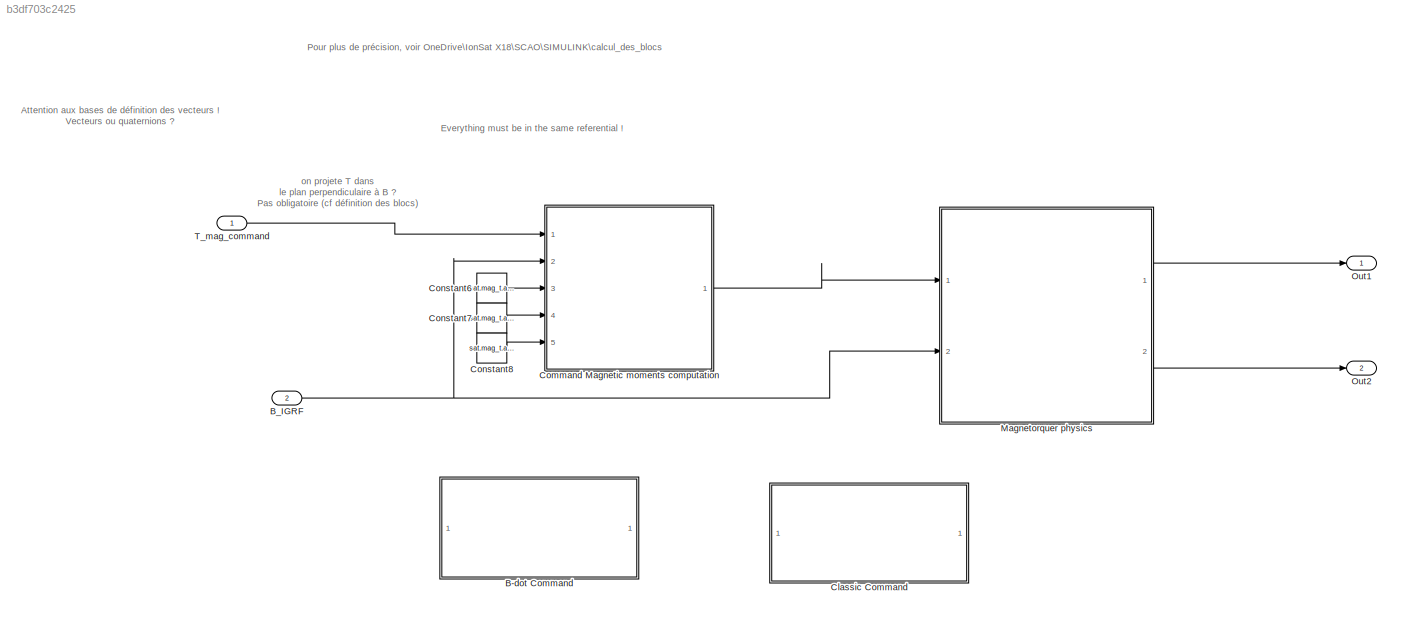
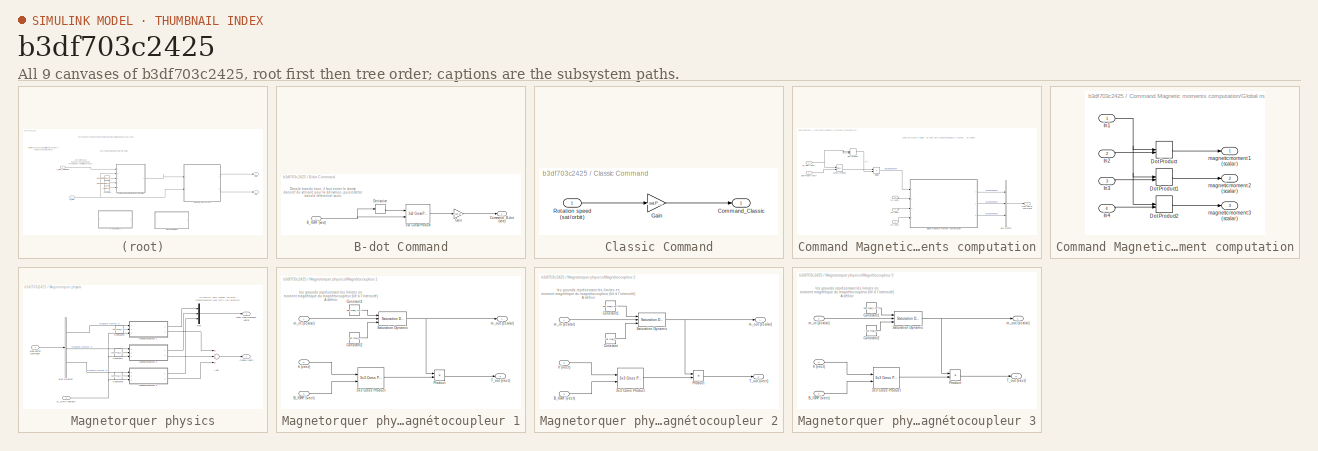
[diagram: thumbnail index - all 9 canvases of the model, root first then tree order]
MODEL slx_b3df703c2425
KIND model
CONFIG AbsTol = auto
CONFIG EnableMultiTasking = off
CONFIG FixedStep = auto
CONFIG MaxStep = auto
CONFIG MinStep = auto
CONFIG RelTol = 1e-3
CONFIG SampleTimeConstraint = Unconstrained
CONFIG Solver = ode5
CONFIG SolverName = ode5
CONFIG StartTime = 0.0
CONFIG StopTime = 10.0
BLOCK [SubSystem] B-dot Command
  Ports = [1, 1]
  RequestExecContextInheritance = off
BLOCK [Reference] B-dot Command/3x3 Cross Product  REF=sharedutil/3x3 Cross Product
  Ports = [2, 1]
  SourceBlock = sharedutil/3x3 Cross Product
  SourceProductBaseCode = AE
  SourceProductName = Aerospace Blockset
  SourceType = CrossProduct
BLOCK [Inport] B-dot Command/B_IGRF (vect)
  IconDisplay = Port number
BLOCK [Outport] B-dot Command/Command_B-dot (vect)
  IconDisplay = Port number
  VectorParamsAs1DForOutWhenUnconnected = off
BLOCK [Derivative] B-dot Command/Derivative
BLOCK [Gain] B-dot Command/Gain
  Gain = - sat.PID.k_mag_bdot
  OutDataTypeStr = Inherit: Inherit via internal rule
  ParamDataTypeStr = Inherit: Inherit via internal rule
  SaturateOnIntegerOverflow = off
BLOCK [Inport] B_IGRF
  IconDisplay = Port number
  Port = 2
BLOCK [SubSystem] Classic Command
  Ports = [1, 1]
  RequestExecContextInheritance = off
BLOCK [Outport] Classic Command/Command_Classic
  IconDisplay = Port number
  VectorParamsAs1DForOutWhenUnconnected = off
BLOCK [Gain] Classic Command/Gain
  Gain = - sat.PID.k_mag_classic
  OutDataTypeStr = Inherit: Inherit via internal rule
  ParamDataTypeStr = Inherit: Inherit via internal rule
  SaturateOnIntegerOverflow = off
BLOCK [Inport] Classic Command/Rotation speed (sat//orbit)
  IconDisplay = Port number
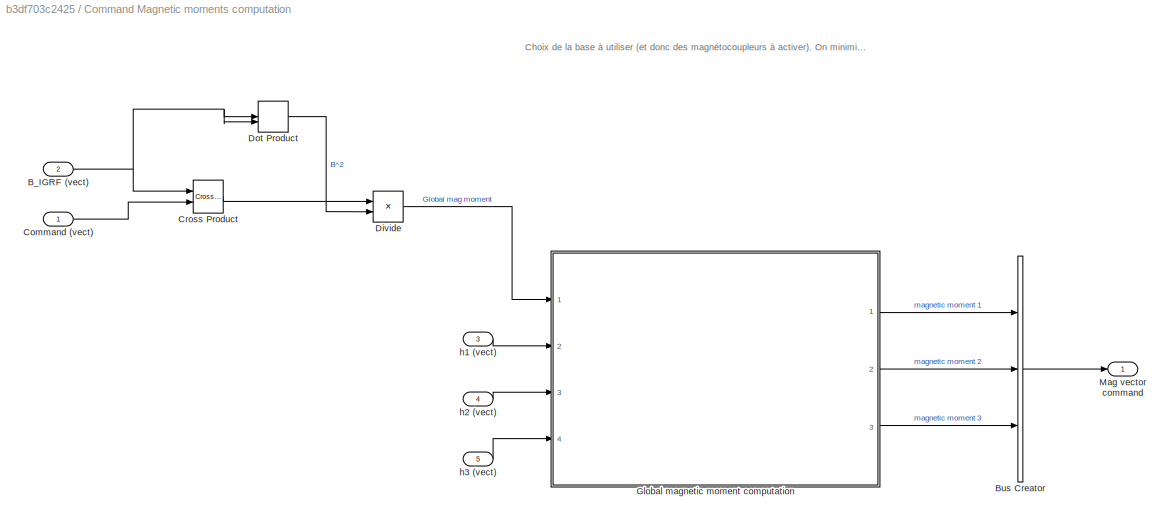
BLOCK [SubSystem] Command Magnetic moments computation
  Ports = [5, 1]
  RequestExecContextInheritance = off
BLOCK [Inport] Command Magnetic moments computation/B_IGRF (vect)
  IconDisplay = Port number
  Port = 2
BLOCK [BusCreator] Command Magnetic moments computation/Bus Creator
  DisplayOption = bar
  InheritFromInputs = on
  Inputs = 3
  Ports = [3, 1]
BLOCK [Inport] Command Magnetic moments computation/Command (vect)
  IconDisplay = Port number
BLOCK [Reference] Command Magnetic moments computation/Cross Product  REF=vrlib/Utilities/Cross Product
  Ports = [2, 1]
  SourceBlock = vrlib/Utilities/Cross Product
  SourceProductBaseCode = SL
  SourceProductName = Simulink
  SourceType = Cross Product
BLOCK [Product] Command Magnetic moments computation/Divide
  InputSameDT = off
  Inputs = */
  OutDataTypeStr = Inherit: Inherit via internal rule
  Ports = [2, 1]
  RndMeth = Floor
  SaturateOnIntegerOverflow = off
BLOCK [DotProduct] Command Magnetic moments computation/Dot Product
  OutDataTypeStr = Inherit: Inherit via internal rule
BLOCK [SubSystem] Command Magnetic moments computation/Global magnetic moment computation
  Ports = [4, 3]
  RequestExecContextInheritance = off
BLOCK [DotProduct] Command Magnetic moments computation/Global magnetic moment computation/Dot Product
  OutDataTypeStr = Inherit: Inherit via internal rule
BLOCK [DotProduct] Command Magnetic moments computation/Global magnetic moment computation/Dot Product1
  OutDataTypeStr = Inherit: Inherit via internal rule
BLOCK [DotProduct] Command Magnetic moments computation/Global magnetic moment computation/Dot Product2
  OutDataTypeStr = Inherit: Inherit via internal rule
BLOCK [Inport] Command Magnetic moments computation/Global magnetic moment computation/In1
  IconDisplay = Port number
BLOCK [Inport] Command Magnetic moments computation/Global magnetic moment computation/In2
  IconDisplay = Port number
  Port = 2
BLOCK [Inport] Command Magnetic moments computation/Global magnetic moment computation/In3
  IconDisplay = Port number
  Port = 3
BLOCK [Inport] Command Magnetic moments computation/Global magnetic moment computation/In4
  IconDisplay = Port number
  Port = 4
BLOCK [Outport] Command Magnetic moments computation/Global magnetic moment computation/magnetic moment 1 (scalar)
  IconDisplay = Port number
BLOCK [Outport] Command Magnetic moments computation/Global magnetic moment computation/magnetic moment 2 (scalar)
  IconDisplay = Port number
  Port = 2
BLOCK [Outport] Command Magnetic moments computation/Global magnetic moment computation/magnetic moment 3 (scalar)
  IconDisplay = Port number
  Port = 3
BLOCK [Outport] Command Magnetic moments computation/Mag vector command
  IconDisplay = Port number
  VectorParamsAs1DForOutWhenUnconnected = off
BLOCK [Inport] Command Magnetic moments computation/h1 (vect)
  IconDisplay = Port number
  Port = 3
BLOCK [Inport] Command Magnetic moments computation/h2 (vect)
  IconDisplay = Port number
  Port = 4
BLOCK [Inport] Command Magnetic moments computation/h3 (vect)
  IconDisplay = Port number
  Port = 5
BLOCK [Constant] Constant6
  Value = sat.mag_t.axe1
BLOCK [Constant] Constant7
  Value = sat.mag_t.axe2
BLOCK [Constant] Constant8
  Value = sat.mag_t.axe3
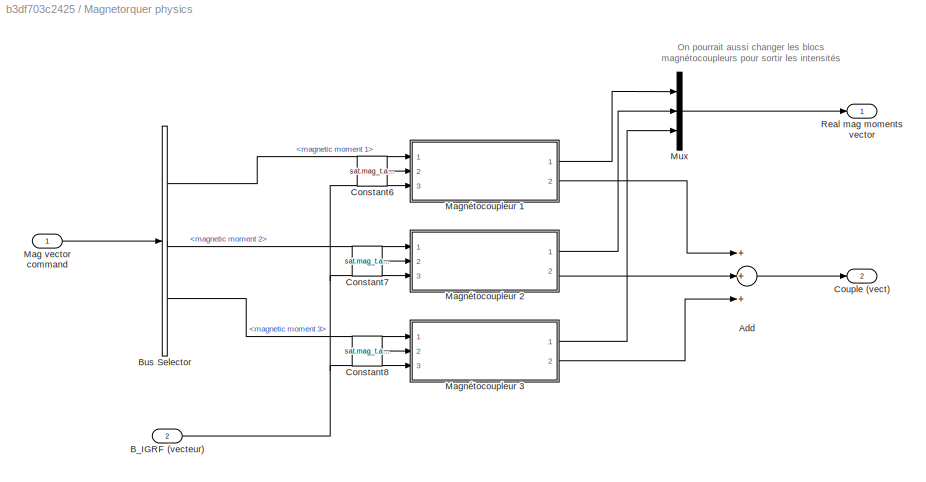
BLOCK [SubSystem] Magnetorquer physics
  Ports = [2, 2]
  RequestExecContextInheritance = off
BLOCK [Sum] Magnetorquer physics/Add
  InputSameDT = off
  Inputs = +++
  OutDataTypeStr = Inherit: Inherit via internal rule
  Ports = [3, 1]
  SaturateOnIntegerOverflow = off
BLOCK [Inport] Magnetorquer physics/B_IGRF (vecteur)
  IconDisplay = Port number
  Port = 2
BLOCK [BusSelector] Magnetorquer physics/Bus Selector
  OutputAsBus = off
  OutputSignals = magnetic moment 1,magnetic moment 2,magnetic moment 3
  Ports = [1, 3]
BLOCK [Constant] Magnetorquer physics/Constant6
  Value = sat.mag_t.axe1
BLOCK [Constant] Magnetorquer physics/Constant7
  Value = sat.mag_t.axe2
BLOCK [Constant] Magnetorquer physics/Constant8
  Value = sat.mag_t.axe3
BLOCK [Outport] Magnetorquer physics/Couple (vect)
  IconDisplay = Port number
  Port = 2
  VectorParamsAs1DForOutWhenUnconnected = off
BLOCK [Inport] Magnetorquer physics/Mag vector command
  IconDisplay = Port number
BLOCK [SubSystem] Magnetorquer physics/Magnétocoupleur 1
  Ports = [3, 2]
  RequestExecContextInheritance = off
BLOCK [Reference] Magnetorquer physics/Magnétocoupleur 1/3x3 Cross Product  REF=sharedutil/3x3 Cross Product
  Ports = [2, 1]
  SourceBlock = sharedutil/3x3 Cross Product
  SourceProductBaseCode = AE
  SourceProductName = Aerospace Blockset
  SourceType = CrossProduct
BLOCK [Inport] Magnetorquer physics/Magnétocoupleur 1/B_IGRF (vect)
  IconDisplay = Port number
  Port = 3
BLOCK [Constant] Magnetorquer physics/Magnétocoupleur 1/Constant1
  Value = sat.mag_t.max_mm1
BLOCK [Constant] Magnetorquer physics/Magnétocoupleur 1/Constant2
  Value = - sat.mag_t.max_mm1
BLOCK [Product] Magnetorquer physics/Magnétocoupleur 1/Product
  InputSameDT = off
  OutDataTypeStr = Inherit: Inherit via internal rule
  Ports = [2, 1]
  RndMeth = Floor
  SaturateOnIntegerOverflow = off
BLOCK [Reference] Magnetorquer physics/Magnétocoupleur 1/Saturation Dynamic  REF=simulink/Discontinuities/Saturation
Dynamic
  Ports = [3, 1]
  SourceBlock = simulink/Discontinuities/Saturation\nDynamic
  SourceProductBaseCode = SL
  SourceProductName = Simulink
  SourceType = Saturation Dynamic
BLOCK [Outport] Magnetorquer physics/Magnétocoupleur 1/T_out (vect)
  IconDisplay = Port number
  Port = 2
  VectorParamsAs1DForOutWhenUnconnected = off
BLOCK [Inport] Magnetorquer physics/Magnétocoupleur 1/h (vect)
  IconDisplay = Port number
  Port = 2
BLOCK [Inport] Magnetorquer physics/Magnétocoupleur 1/m_in (scalar)
  IconDisplay = Port number
BLOCK [Outport] Magnetorquer physics/Magnétocoupleur 1/m_out (scalar)
  IconDisplay = Port number
  VectorParamsAs1DForOutWhenUnconnected = off
BLOCK [SubSystem] Magnetorquer physics/Magnétocoupleur 2
  Ports = [3, 2]
  RequestExecContextInheritance = off
BLOCK [Reference] Magnetorquer physics/Magnétocoupleur 2/3x3 Cross Product  REF=sharedutil/3x3 Cross Product
  Ports = [2, 1]
  SourceBlock = sharedutil/3x3 Cross Product
  SourceProductBaseCode = AE
  SourceProductName = Aerospace Blockset
  SourceType = CrossProduct
BLOCK [Inport] Magnetorquer physics/Magnétocoupleur 2/B_IGRF (vect)
  IconDisplay = Port number
  Port = 3
BLOCK [Constant] Magnetorquer physics/Magnétocoupleur 2/Constant
  Value = - sat.mag_t.max_mm2
BLOCK [Constant] Magnetorquer physics/Magnétocoupleur 2/Constant1
  Value = sat.mag_t.max_mm2
BLOCK [Product] Magnetorquer physics/Magnétocoupleur 2/Product
  InputSameDT = off
  OutDataTypeStr = Inherit: Inherit via internal rule
  Ports = [2, 1]
  RndMeth = Floor
  SaturateOnIntegerOverflow = off
BLOCK [Reference] Magnetorquer physics/Magnétocoupleur 2/Saturation Dynamic  REF=simulink/Discontinuities/Saturation
Dynamic
  Ports = [3, 1]
  SourceBlock = simulink/Discontinuities/Saturation\nDynamic
  SourceProductBaseCode = SL
  SourceProductName = Simulink
  SourceType = Saturation Dynamic
BLOCK [Outport] Magnetorquer physics/Magnétocoupleur 2/T_out (vect)
  IconDisplay = Port number
  Port = 2
  VectorParamsAs1DForOutWhenUnconnected = off
BLOCK [Inport] Magnetorquer physics/Magnétocoupleur 2/h (vect)
  IconDisplay = Port number
  Port = 2
BLOCK [Inport] Magnetorquer physics/Magnétocoupleur 2/m_in (scalar)
  IconDisplay = Port number
BLOCK [Outport] Magnetorquer physics/Magnétocoupleur 2/m_out (scalar)
  IconDisplay = Port number
  VectorParamsAs1DForOutWhenUnconnected = off
BLOCK [SubSystem] Magnetorquer physics/Magnétocoupleur 3
  Ports = [3, 2]
  RequestExecContextInheritance = off
BLOCK [Reference] Magnetorquer physics/Magnétocoupleur 3/3x3 Cross Product  REF=sharedutil/3x3 Cross Product
  Ports = [2, 1]
  SourceBlock = sharedutil/3x3 Cross Product
  SourceProductBaseCode = AE
  SourceProductName = Aerospace Blockset
  SourceType = CrossProduct
BLOCK [Inport] Magnetorquer physics/Magnétocoupleur 3/B_IGRF (vect)
  IconDisplay = Port number
  Port = 3
BLOCK [Constant] Magnetorquer physics/Magnétocoupleur 3/Constant1
  Value = sat.mag_t.max_mm3
BLOCK [Constant] Magnetorquer physics/Magnétocoupleur 3/Constant2
  Value = - sat.mag_t.max_mm3
BLOCK [Product] Magnetorquer physics/Magnétocoupleur 3/Product
  InputSameDT = off
  OutDataTypeStr = Inherit: Inherit via internal rule
  Ports = [2, 1]
  RndMeth = Floor
  SaturateOnIntegerOverflow = off
BLOCK [Reference] Magnetorquer physics/Magnétocoupleur 3/Saturation Dynamic  REF=simulink/Discontinuities/Saturation
Dynamic
  Ports = [3, 1]
  SourceBlock = simulink/Discontinuities/Saturation\nDynamic
  SourceProductBaseCode = SL
  SourceProductName = Simulink
  SourceType = Saturation Dynamic
BLOCK [Outport] Magnetorquer physics/Magnétocoupleur 3/T_out (vect)
  IconDisplay = Port number
  Port = 2
  VectorParamsAs1DForOutWhenUnconnected = off
BLOCK [Inport] Magnetorquer physics/Magnétocoupleur 3/h (vect)
  IconDisplay = Port number
  Port = 2
BLOCK [Inport] Magnetorquer physics/Magnétocoupleur 3/m_in (scalar)
  IconDisplay = Port number
BLOCK [Outport] Magnetorquer physics/Magnétocoupleur 3/m_out (scalar)
  IconDisplay = Port number
  VectorParamsAs1DForOutWhenUnconnected = off
BLOCK [Mux] Magnetorquer physics/Mux
  DisplayOption = bar
  Inputs = 3
  Ports = [3, 1]
BLOCK [Outport] Magnetorquer physics/Real mag moments vector
  IconDisplay = Port number
  VectorParamsAs1DForOutWhenUnconnected = off
BLOCK [Outport] Out1
  IconDisplay = Port number
BLOCK [Outport] Out2
  IconDisplay = Port number
  Port = 2
BLOCK [Inport] T_mag_command
  IconDisplay = Port number
ANNOTATION (root): Attention aux bases de définition des vecteurs ! Vecteurs ou quaternions ?
ANNOTATION (root): Everything must be in the same referential !
ANNOTATION (root): Pour plus de précision, voir OneDrive\IonSat X18\SCAO\SIMULINK\calcul_des_blocs
ANNOTATION (root): on projete T dans le plan perpendiculaire à B ? Pas obligatoire (cf définition des blocs)
ANNOTATION B-dot Command: Dans le bras du haut, il faut entrer le champ dans ref du vehicule pour la dérivation, puis remettre dans le référentiel voulu
ANNOTATION Command Magnetic moments computation: Choix de la base à utiliser (et donc des magnétocoupleurs à activer). On minimise en gros l'intensité globale.
ANNOTATION Magnetorquer physics: On pourrait aussi changer les blocs magnétocoupleurs pour sortir les intensités
ANNOTATION Magnetorquer physics/Magnétocoupleur 1: les grounds représentant les limites en moment magnétique du magnétocoupleur (lié à l'intensité) A définir
ANNOTATION Magnetorquer physics/Magnétocoupleur 2: les grounds représentant les limites en moment magnétique du magnétocoupleur (lié à l'intensité) A définir
ANNOTATION Magnetorquer physics/Magnétocoupleur 3: les grounds représentant les limites en moment magnétique du magnétocoupleur (lié à l'intensité) A définir
LINE B-dot Command/3x3 Cross Product:1 -> B-dot Command/Gain:1
NET B-dot Command/B_IGRF (vect):1 -> B-dot Command/3x3 Cross Product:2, B-dot Command/Derivative:1
LINE B-dot Command/Derivative:1 -> B-dot Command/3x3 Cross Product:1
LINE B-dot Command/Gain:1 -> B-dot Command/Command_B-dot (vect):1
NET B_IGRF:1 -> Command Magnetic moments computation:2, Magnetorquer physics:2
LINE Classic Command/Gain:1 -> Classic Command/Command_Classic:1
LINE Classic Command/Rotation speed (sat//orbit):1 -> Classic Command/Gain:1
NET Command Magnetic moments computation/B_IGRF (vect):1 -> Command Magnetic moments computation/Cross Product:1, Command Magnetic moments computation/Dot Product:1, Command Magnetic moments computation/Dot Product:2
LINE Command Magnetic moments computation/Bus Creator:1 -> Command Magnetic moments computation/Mag vector command:1
LINE Command Magnetic moments computation/Command (vect):1 -> Command Magnetic moments computation/Cross Product:2
LINE Command Magnetic moments computation/Cross Product:1 -> Command Magnetic moments computation/Divide:1
LINE Command Magnetic moments computation/Divide:1 -> Command Magnetic moments computation/Global magnetic moment computation:1
LINE Command Magnetic moments computation/Dot Product:1 -> Command Magnetic moments computation/Divide:2
LINE Command Magnetic moments computation/Global magnetic moment computation/Dot Product1:1 -> Command Magnetic moments computation/Global magnetic moment computation/magnetic moment 2 (scalar):1
LINE Command Magnetic moments computation/Global magnetic moment computation/Dot Product2:1 -> Command Magnetic moments computation/Global magnetic moment computation/magnetic moment 3 (scalar):1
LINE Command Magnetic moments computation/Global magnetic moment computation/Dot Product:1 -> Command Magnetic moments computation/Global magnetic moment computation/magnetic moment 1 (scalar):1
NET Command Magnetic moments computation/Global magnetic moment computation/In1:1 -> Command Magnetic moments computation/Global magnetic moment computation/Dot Product1:1, Command Magnetic moments computation/Global magnetic moment computation/Dot Product2:1, Command Magnetic moments computation/Global magnetic moment computation/Dot Product:1
LINE Command Magnetic moments computation/Global magnetic moment computation/In2:1 -> Command Magnetic moments computation/Global magnetic moment computation/Dot Product:2
LINE Command Magnetic moments computation/Global magnetic moment computation/In3:1 -> Command Magnetic moments computation/Global magnetic moment computation/Dot Product1:2
LINE Command Magnetic moments computation/Global magnetic moment computation/In4:1 -> Command Magnetic moments computation/Global magnetic moment computation/Dot Product2:2
LINE Command Magnetic moments computation/Global magnetic moment computation:1 -> Command Magnetic moments computation/Bus Creator:1
LINE Command Magnetic moments computation/Global magnetic moment computation:2 -> Command Magnetic moments computation/Bus Creator:2
LINE Command Magnetic moments computation/Global magnetic moment computation:3 -> Command Magnetic moments computation/Bus Creator:3
LINE Command Magnetic moments computation/h1 (vect):1 -> Command Magnetic moments computation/Global magnetic moment computation:2
LINE Command Magnetic moments computation/h2 (vect):1 -> Command Magnetic moments computation/Global magnetic moment computation:3
LINE Command Magnetic moments computation/h3 (vect):1 -> Command Magnetic moments computation/Global magnetic moment computation:4
LINE Command Magnetic moments computation:1 -> Magnetorquer physics:1
LINE Constant6:1 -> Command Magnetic moments computation:3
LINE Constant7:1 -> Command Magnetic moments computation:4
LINE Constant8:1 -> Command Magnetic moments computation:5
LINE Magnetorquer physics/Add:1 -> Magnetorquer physics/Couple (vect):1
NET Magnetorquer physics/B_IGRF (vecteur):1 -> Magnetorquer physics/Magnétocoupleur 1:3, Magnetorquer physics/Magnétocoupleur 2:3, Magnetorquer physics/Magnétocoupleur 3:3
LINE Magnetorquer physics/Bus Selector:1 -> Magnetorquer physics/Magnétocoupleur 1:1
LINE Magnetorquer physics/Bus Selector:2 -> Magnetorquer physics/Magnétocoupleur 2:1
LINE Magnetorquer physics/Bus Selector:3 -> Magnetorquer physics/Magnétocoupleur 3:1
LINE Magnetorquer physics/Constant6:1 -> Magnetorquer physics/Magnétocoupleur 1:2
LINE Magnetorquer physics/Constant7:1 -> Magnetorquer physics/Magnétocoupleur 2:2
LINE Magnetorquer physics/Constant8:1 -> Magnetorquer physics/Magnétocoupleur 3:2
LINE Magnetorquer physics/Mag vector command:1 -> Magnetorquer physics/Bus Selector:1
LINE Magnetorquer physics/Magnétocoupleur 1/3x3 Cross Product:1 -> Magnetorquer physics/Magnétocoupleur 1/Product:2
LINE Magnetorquer physics/Magnétocoupleur 1/B_IGRF (vect):1 -> Magnetorquer physics/Magnétocoupleur 1/3x3 Cross Product:2
LINE Magnetorquer physics/Magnétocoupleur 1/Constant1:1 -> Magnetorquer physics/Magnétocoupleur 1/Saturation Dynamic:1
LINE Magnetorquer physics/Magnétocoupleur 1/Constant2:1 -> Magnetorquer physics/Magnétocoupleur 1/Saturation Dynamic:3
LINE Magnetorquer physics/Magnétocoupleur 1/Product:1 -> Magnetorquer physics/Magnétocoupleur 1/T_out (vect):1
NET Magnetorquer physics/Magnétocoupleur 1/Saturation Dynamic:1 -> Magnetorquer physics/Magnétocoupleur 1/Product:1, Magnetorquer physics/Magnétocoupleur 1/m_out (scalar):1
LINE Magnetorquer physics/Magnétocoupleur 1/h (vect):1 -> Magnetorquer physics/Magnétocoupleur 1/3x3 Cross Product:1
LINE Magnetorquer physics/Magnétocoupleur 1/m_in (scalar):1 -> Magnetorquer physics/Magnétocoupleur 1/Saturation Dynamic:2
LINE Magnetorquer physics/Magnétocoupleur 1:1 -> Magnetorquer physics/Mux:1
LINE Magnetorquer physics/Magnétocoupleur 1:2 -> Magnetorquer physics/Add:1
LINE Magnetorquer physics/Magnétocoupleur 2/3x3 Cross Product:1 -> Magnetorquer physics/Magnétocoupleur 2/Product:2
LINE Magnetorquer physics/Magnétocoupleur 2/B_IGRF (vect):1 -> Magnetorquer physics/Magnétocoupleur 2/3x3 Cross Product:2
LINE Magnetorquer physics/Magnétocoupleur 2/Constant1:1 -> Magnetorquer physics/Magnétocoupleur 2/Saturation Dynamic:1
LINE Magnetorquer physics/Magnétocoupleur 2/Constant:1 -> Magnetorquer physics/Magnétocoupleur 2/Saturation Dynamic:3
LINE Magnetorquer physics/Magnétocoupleur 2/Product:1 -> Magnetorquer physics/Magnétocoupleur 2/T_out (vect):1
NET Magnetorquer physics/Magnétocoupleur 2/Saturation Dynamic:1 -> Magnetorquer physics/Magnétocoupleur 2/Product:1, Magnetorquer physics/Magnétocoupleur 2/m_out (scalar):1
LINE Magnetorquer physics/Magnétocoupleur 2/h (vect):1 -> Magnetorquer physics/Magnétocoupleur 2/3x3 Cross Product:1
LINE Magnetorquer physics/Magnétocoupleur 2/m_in (scalar):1 -> Magnetorquer physics/Magnétocoupleur 2/Saturation Dynamic:2
LINE Magnetorquer physics/Magnétocoupleur 2:1 -> Magnetorquer physics/Mux:2
LINE Magnetorquer physics/Magnétocoupleur 2:2 -> Magnetorquer physics/Add:2
LINE Magnetorquer physics/Magnétocoupleur 3/3x3 Cross Product:1 -> Magnetorquer physics/Magnétocoupleur 3/Product:2
LINE Magnetorquer physics/Magnétocoupleur 3/B_IGRF (vect):1 -> Magnetorquer physics/Magnétocoupleur 3/3x3 Cross Product:2
LINE Magnetorquer physics/Magnétocoupleur 3/Constant1:1 -> Magnetorquer physics/Magnétocoupleur 3/Saturation Dynamic:1
LINE Magnetorquer physics/Magnétocoupleur 3/Constant2:1 -> Magnetorquer physics/Magnétocoupleur 3/Saturation Dynamic:3
LINE Magnetorquer physics/Magnétocoupleur 3/Product:1 -> Magnetorquer physics/Magnétocoupleur 3/T_out (vect):1
NET Magnetorquer physics/Magnétocoupleur 3/Saturation Dynamic:1 -> Magnetorquer physics/Magnétocoupleur 3/Product:1, Magnetorquer physics/Magnétocoupleur 3/m_out (scalar):1
LINE Magnetorquer physics/Magnétocoupleur 3/h (vect):1 -> Magnetorquer physics/Magnétocoupleur 3/3x3 Cross Product:1
LINE Magnetorquer physics/Magnétocoupleur 3/m_in (scalar):1 -> Magnetorquer physics/Magnétocoupleur 3/Saturation Dynamic:2
LINE Magnetorquer physics/Magnétocoupleur 3:1 -> Magnetorquer physics/Mux:3
LINE Magnetorquer physics/Magnétocoupleur 3:2 -> Magnetorquer physics/Add:3
LINE Magnetorquer physics/Mux:1 -> Magnetorquer physics/Real mag moments vector:1
LINE Magnetorquer physics:1 -> Out1:1
LINE Magnetorquer physics:2 -> Out2:1
LINE T_mag_command:1 -> Command Magnetic moments computation:1
note: NET lines group one-source signal fan-out (src -> all destinations, sorted); 1:1 wires keep LINE
